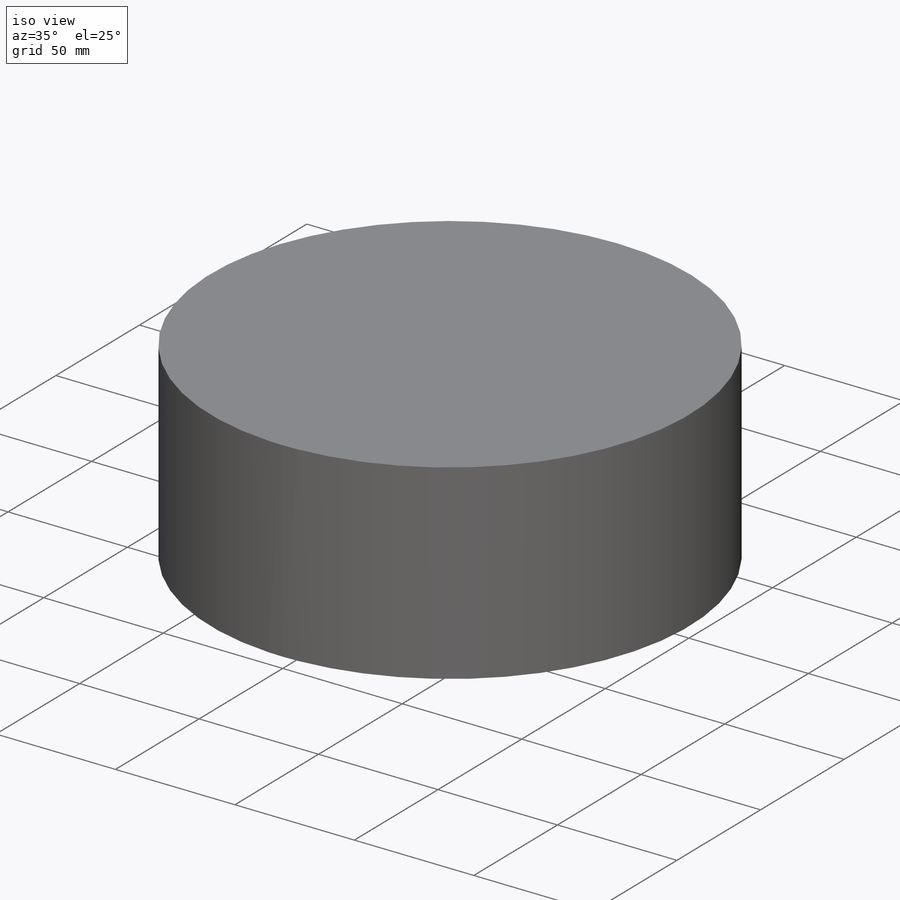
[diagram: iso view]
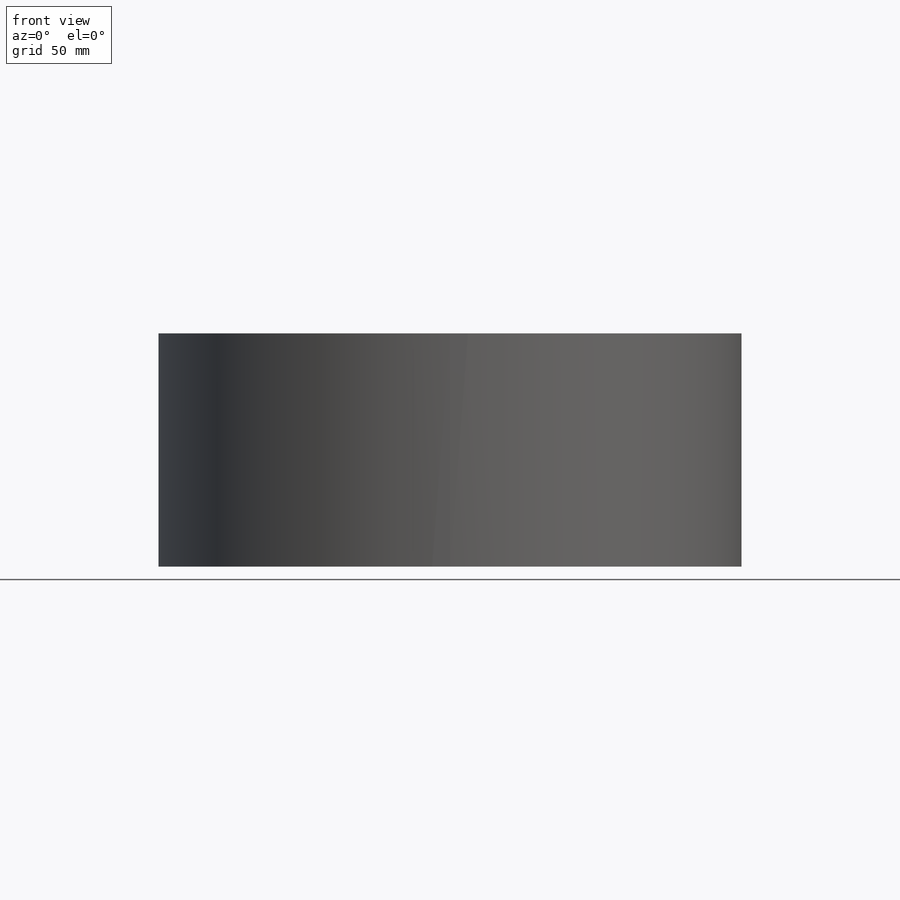
[diagram: front view]
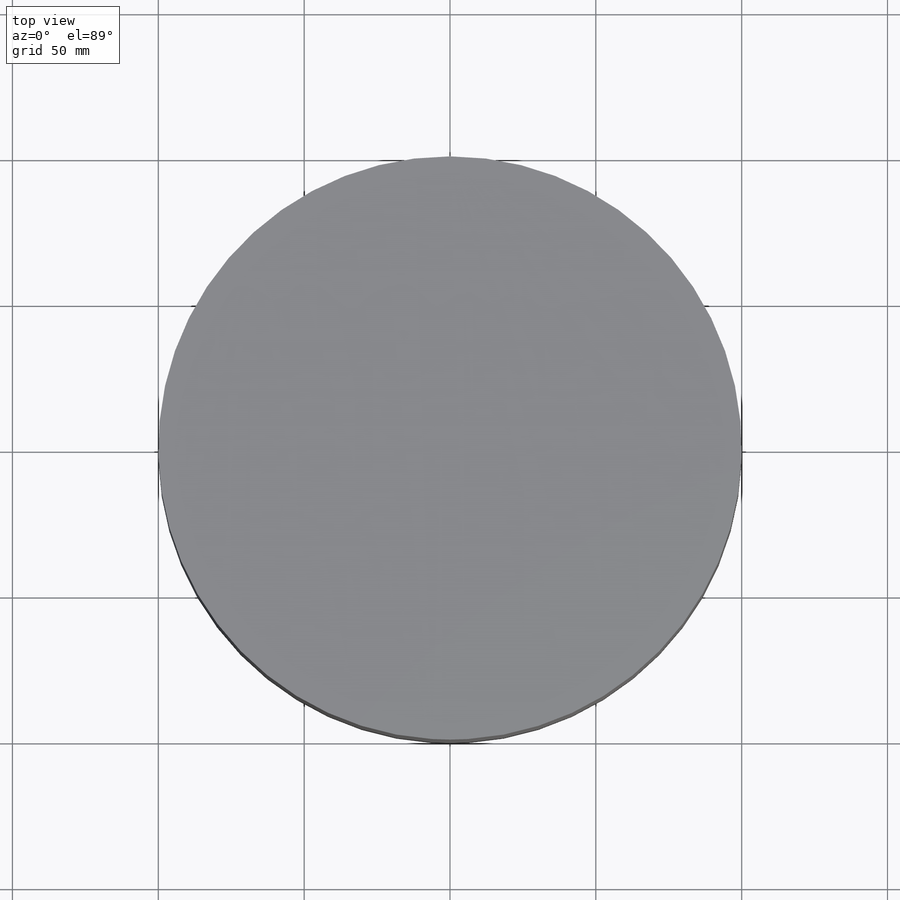
[diagram: top view]
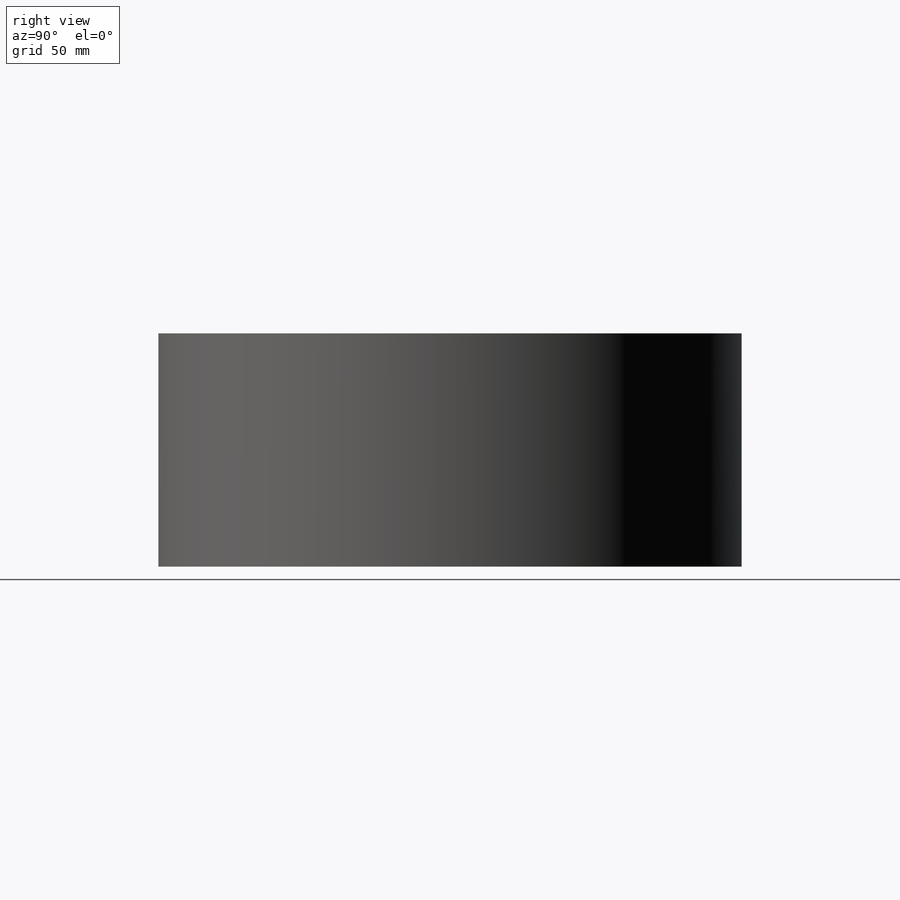
[diagram: right view]
SOLIDWORKS PART (.sldprt)
format: sldprt  version: not decoded by parser v0  size: 197,120 bytes
history: native  units: mm
features: sketch x5, plane x3, helix x2, material x1, extrude x1 (+10 scaffold rows collapsed)
feature tree (22):
  scaffold x10  (default folders/planes/origin — collapsed)
  material  "Material <not specified>"
  plane  "Piano frontale"
  plane  "Piano superiore"
  plane  "Piano destro"
  sketch  "Sketch1"  dims[D1=200.0mm]
  extrude  "Boss-Extrude1"  Depth=80mm
  sketch  "Sketch2"  dims[D1=0.1mm D2=~3.717141mm]
  sketch  "Sketch3"  dims[D1=200.0mm]
  helix  "Helix/Spiral1"  Pitch=80mm
  sketch  "Sketch4"  dims[D1=~3.644136mm]
  sketch  "Sketch5"  dims[D1=203.0mm]
  helix  "Helix/Spiral2"  Pitch=80mm
decode coverage: 8 of 8 modeling features carry decoded parameters
note: ~ marks probable driven/reference dimensions
note: suppression state not decoded; provenance and decode notes live in map.json
